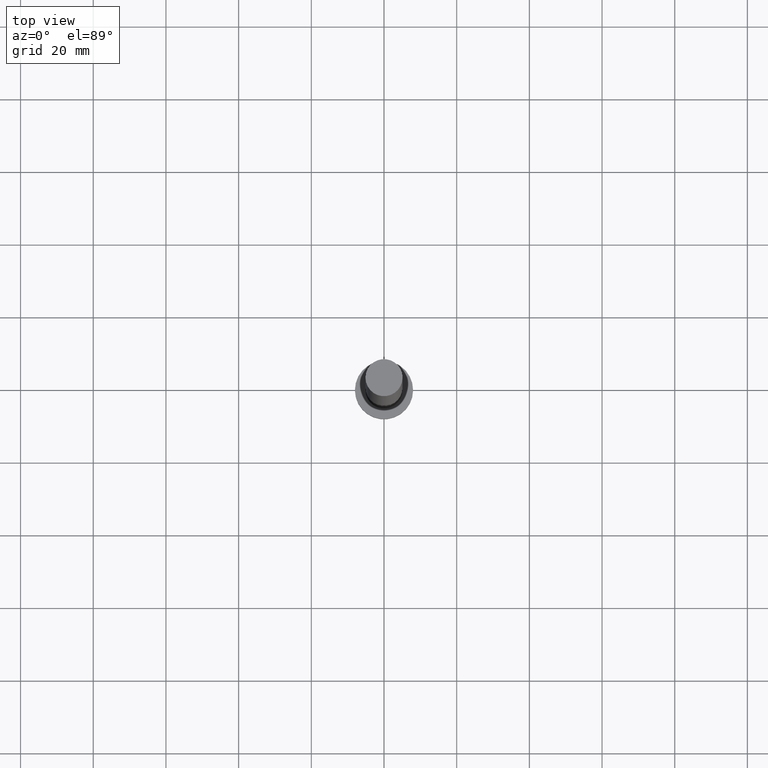
[diagram: clean part render]
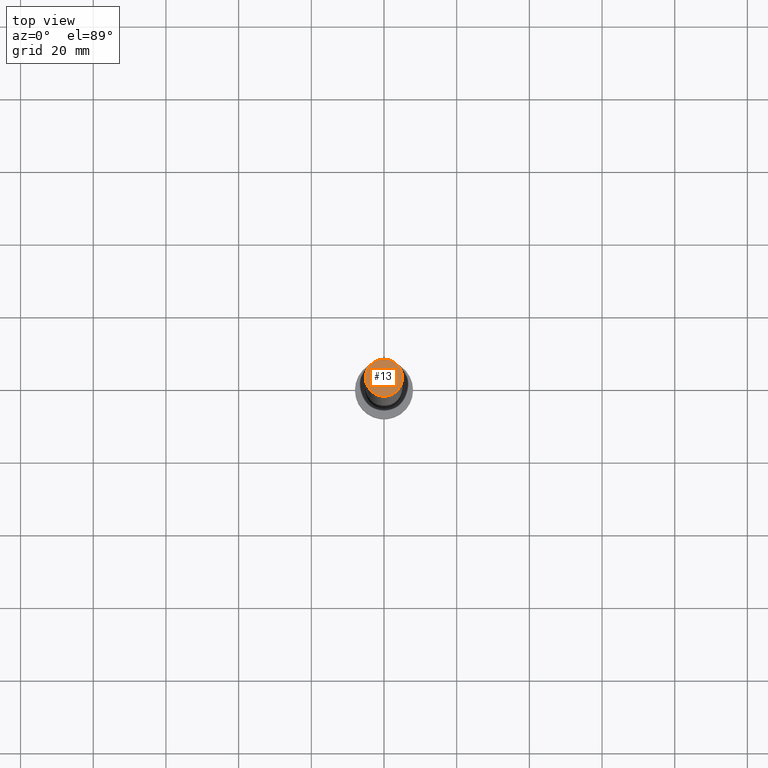
[diagram: same view with one face highlighted and labeled with its STEP entity id]
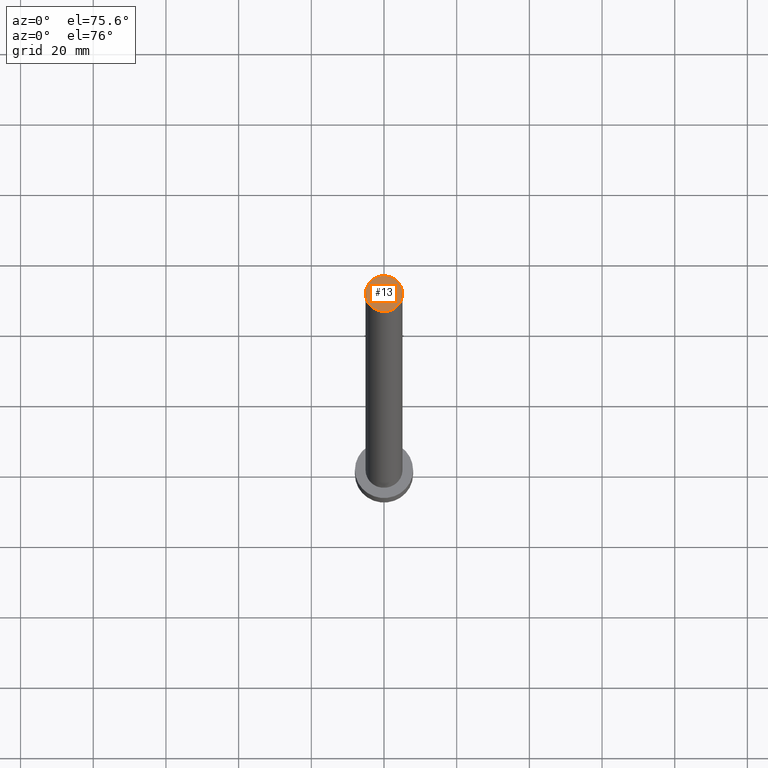
[diagram: same view with one face highlighted and labeled with its STEP entity id]
A machine part, top view. The second image highlights one B-rep face of the part: STEP entity #13.
A second angle (auxiliary view) of the same face is appended — the face is thin or edge-on in the first view.
In plain terms, the highlighted planar face has unit normal (0, 0, 1).
Its self-contained STEP definition (entity closure, byte-faithful):
#9 = DIRECTION ( 'NONE',  ( 1.000000000000000000, 0.000000000000000000, 0.000000000000000000 ) ) ;
#11 = PLANE ( 'NONE',  #177 ) ;
#12 = DIRECTION ( 'NONE',  ( 0.000000000000000000, 0.000000000000000000, 1.000000000000000000 ) ) ;
#13 = ADVANCED_FACE ( 'NONE', ( #144 ), #11, .T. ) ;
#27 = CARTESIAN_POINT ( 'NONE',  ( 0.000000000000000000, 0.000000000000000000, 200.0000000000000000 ) ) ;
#28 = DIRECTION ( 'NONE',  ( 1.000000000000000000, 0.000000000000000000, -0.000000000000000000 ) ) ;
#55 = DIRECTION ( 'NONE',  ( 0.000000000000000000, 0.000000000000000000, 1.000000000000000000 ) ) ;
#60 = VERTEX_POINT ( 'NONE', #90 ) ;
#67 = AXIS2_PLACEMENT_3D ( 'NONE', #72, #211, #9 ) ;
#72 = CARTESIAN_POINT ( 'NONE',  ( 0.000000000000000000, 0.000000000000000000, 200.0000000000000000 ) ) ;
#83 = ORIENTED_EDGE ( 'NONE', *, *, #160, .T. ) ;
#85 = EDGE_LOOP ( 'NONE', ( #222, #83 ) ) ;
#90 = CARTESIAN_POINT ( 'NONE',  ( 5.099999999999999645, 6.245698675651500839E-16, 200.0000000000000000 ) ) ;
#121 = VERTEX_POINT ( 'NONE', #208 ) ;
#144 = FACE_OUTER_BOUND ( 'NONE', #85, .T. ) ;
#153 = CARTESIAN_POINT ( 'NONE',  ( 0.000000000000000000, 0.000000000000000000, 200.0000000000000000 ) ) ;
#160 = EDGE_CURVE ( 'NONE', #60, #121, #234, .T. ) ;
#174 = CIRCLE ( 'NONE', #245, 5.099999999999999645 ) ;
#177 = AXIS2_PLACEMENT_3D ( 'NONE', #27, #12, #28 ) ;
#194 = EDGE_CURVE ( 'NONE', #121, #60, #174, .T. ) ;
#208 = CARTESIAN_POINT ( 'NONE',  ( -5.099999999999999645, 0.000000000000000000, 200.0000000000000000 ) ) ;
#211 = DIRECTION ( 'NONE',  ( 0.000000000000000000, 0.000000000000000000, 1.000000000000000000 ) ) ;
#222 = ORIENTED_EDGE ( 'NONE', *, *, #194, .T. ) ;
#234 = CIRCLE ( 'NONE', #67, 5.099999999999999645 ) ;
#245 = AXIS2_PLACEMENT_3D ( 'NONE', #153, #55, #254 ) ;
#254 = DIRECTION ( 'NONE',  ( 1.000000000000000000, 0.000000000000000000, 0.000000000000000000 ) ) ;